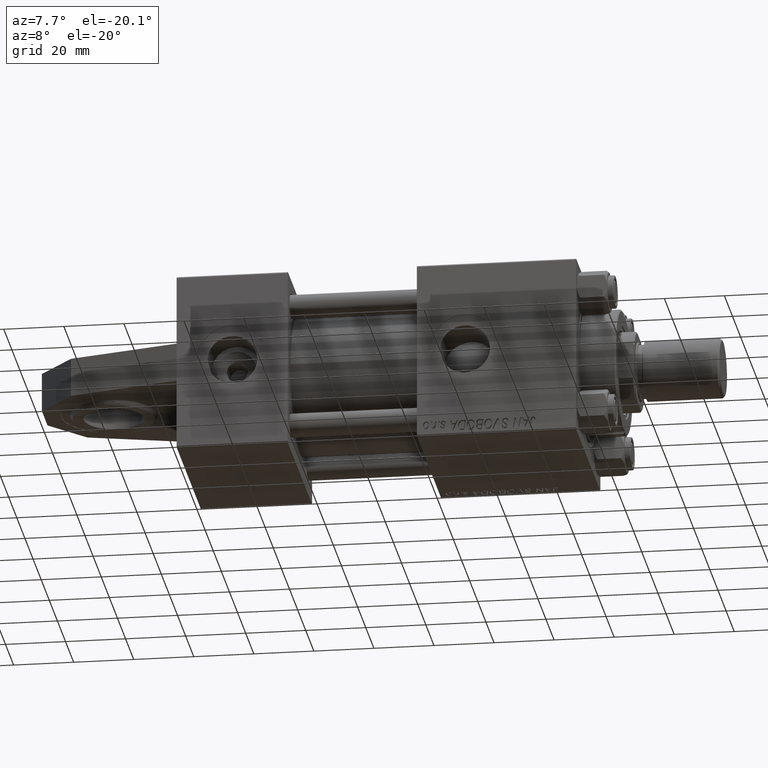
[diagram: clean part render]
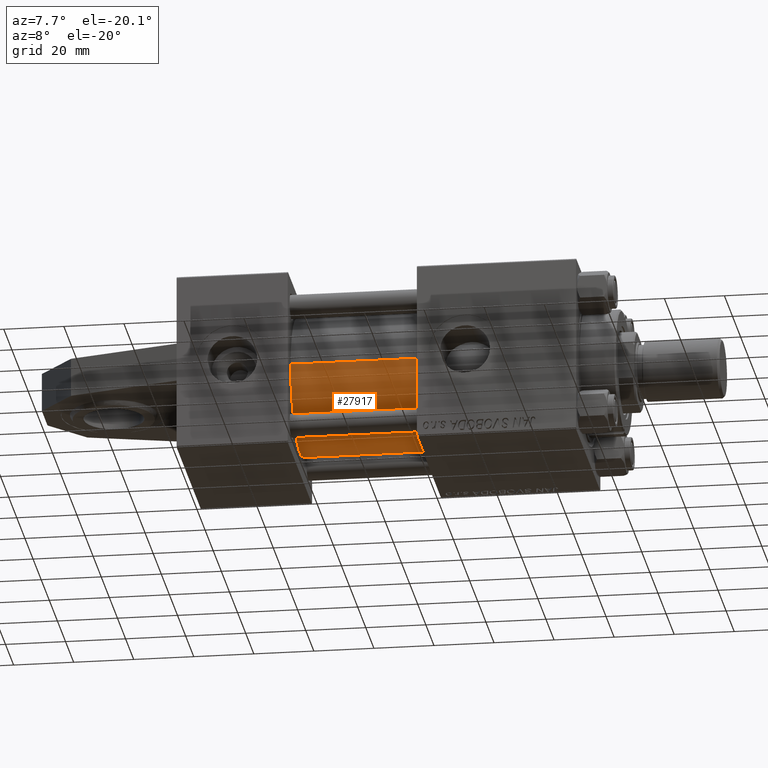
[diagram: same view with one face highlighted and labeled with its STEP entity id]
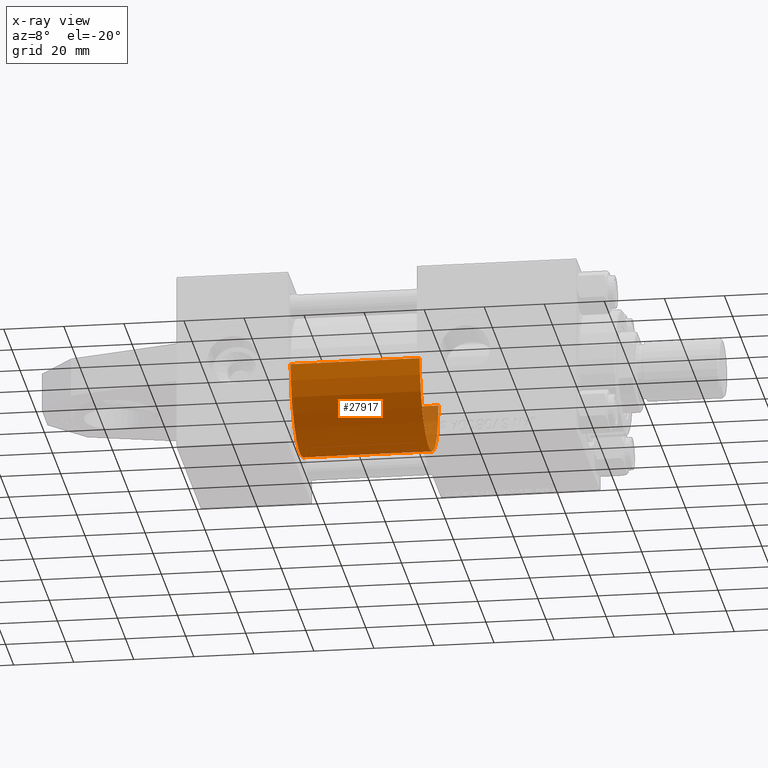
[diagram: x-ray of the same camera — body ghosted, the highlighted face saturated]
A machine part, auxiliary view. The second image highlights one B-rep face of the part: STEP entity #27917.
The next image is the same camera in x-ray: the body ghosted, the highlighted face saturated — about 4% of this face is hidden behind the body in this view.
In plain terms, the highlighted cylindrical surface (partial cylindrical patch) has radius 23 mm, axis along (-1, 0, -0).
Its self-contained STEP definition (entity closure, byte-faithful):
#2244 = VECTOR ( 'NONE', #8474, 1000.000000000000000 ) ;
#4450 = VERTEX_POINT ( 'NONE', #21539 ) ;
#4606 = FACE_OUTER_BOUND ( 'NONE', #24381, .T. ) ;
#4749 = CARTESIAN_POINT ( 'NONE',  ( 37.00000000000000000, -2.602085213965210642E-15, 0.000000000000000000 ) ) ;
#8129 = ORIENTED_EDGE ( 'NONE', *, *, #25549, .T. ) ;
#8474 = DIRECTION ( 'NONE',  ( -1.000000000000000000, -0.000000000000000000, -0.000000000000000000 ) ) ;
#9137 = ORIENTED_EDGE ( 'NONE', *, *, #43764, .F. ) ;
#10156 = AXIS2_PLACEMENT_3D ( 'NONE', #19981, #12544, #20739 ) ;
#12544 = DIRECTION ( 'NONE',  ( -1.000000000000000000, -0.000000000000000000, -0.000000000000000000 ) ) ;
#14066 = CARTESIAN_POINT ( 'NONE',  ( 37.00000000000000000, -2.602085213965210642E-15, 23.00000000000000000 ) ) ;
#15006 = ORIENTED_EDGE ( 'NONE', *, *, #17528, .F. ) ;
#16350 = CIRCLE ( 'NONE', #45050, 23.00000000000000000 ) ;
#16611 = CARTESIAN_POINT ( 'NONE',  ( 79.99999999999998579, 2.146024240737016609E-16, -23.00000000000000000 ) ) ;
#17528 = EDGE_CURVE ( 'NONE', #25570, #29537, #40722, .T. ) ;
#19981 = CARTESIAN_POINT ( 'NONE',  ( 79.99999999999998579, -2.602085213965210642E-15, 0.000000000000000000 ) ) ;
#20739 = DIRECTION ( 'NONE',  ( 0.000000000000000000, 0.000000000000000000, 1.000000000000000000 ) ) ;
#21539 = CARTESIAN_POINT ( 'NONE',  ( 79.99999999999998579, -2.602085213965210642E-15, 23.00000000000000000 ) ) ;
#24381 = EDGE_LOOP ( 'NONE', ( #15006, #9137, #28344, #8129 ) ) ;
#25549 = EDGE_CURVE ( 'NONE', #48271, #29537, #33023, .T. ) ;
#25570 = VERTEX_POINT ( 'NONE', #47871 ) ;
#27917 = ADVANCED_FACE ( 'NONE', ( #4606 ), #40258, .T. ) ;
#28344 = ORIENTED_EDGE ( 'NONE', *, *, #37166, .T. ) ;
#28770 = VECTOR ( 'NONE', #36599, 1000.000000000000000 ) ;
#29537 = VERTEX_POINT ( 'NONE', #48244 ) ;
#31666 = DIRECTION ( 'NONE',  ( 0.000000000000000000, 0.000000000000000000, 1.000000000000000000 ) ) ;
#32176 = DIRECTION ( 'NONE',  ( 1.000000000000000000, -0.000000000000000000, 0.000000000000000000 ) ) ;
#33023 = CIRCLE ( 'NONE', #40417, 23.00000000000000000 ) ;
#33762 = DIRECTION ( 'NONE',  ( 0.000000000000000000, 0.000000000000000000, -1.000000000000000000 ) ) ;
#36599 = DIRECTION ( 'NONE',  ( -1.000000000000000000, -0.000000000000000000, -0.000000000000000000 ) ) ;
#37166 = EDGE_CURVE ( 'NONE', #4450, #48271, #47485, .T. ) ;
#40258 = CYLINDRICAL_SURFACE ( 'NONE', #10156, 23.00000000000000000 ) ;
#40417 = AXIS2_PLACEMENT_3D ( 'NONE', #4749, #32176, #31666 ) ;
#40722 = LINE ( 'NONE', #16611, #28770 ) ;
#42001 = DIRECTION ( 'NONE',  ( 1.000000000000000000, 0.000000000000000000, 0.000000000000000000 ) ) ;
#42249 = CARTESIAN_POINT ( 'NONE',  ( 79.99999999999998579, -2.602085213965210642E-15, 0.000000000000000000 ) ) ;
#43627 = CARTESIAN_POINT ( 'NONE',  ( 79.99999999999998579, -2.602085213965210642E-15, 23.00000000000000000 ) ) ;
#43764 = EDGE_CURVE ( 'NONE', #4450, #25570, #16350, .T. ) ;
#45050 = AXIS2_PLACEMENT_3D ( 'NONE', #42249, #42001, #33762 ) ;
#47485 = LINE ( 'NONE', #43627, #2244 ) ;
#47871 = CARTESIAN_POINT ( 'NONE',  ( 79.99999999999998579, 2.146024240737016609E-16, -23.00000000000000000 ) ) ;
#48244 = CARTESIAN_POINT ( 'NONE',  ( 37.00000000000000000, 2.146024240737016609E-16, -23.00000000000000000 ) ) ;
#48271 = VERTEX_POINT ( 'NONE', #14066 ) ;